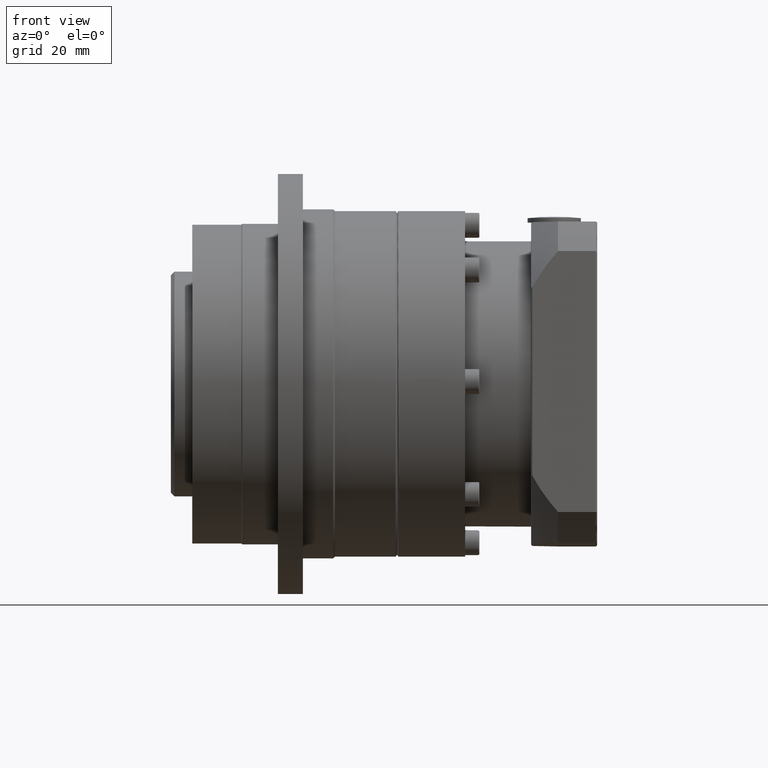
[diagram: clean part render]
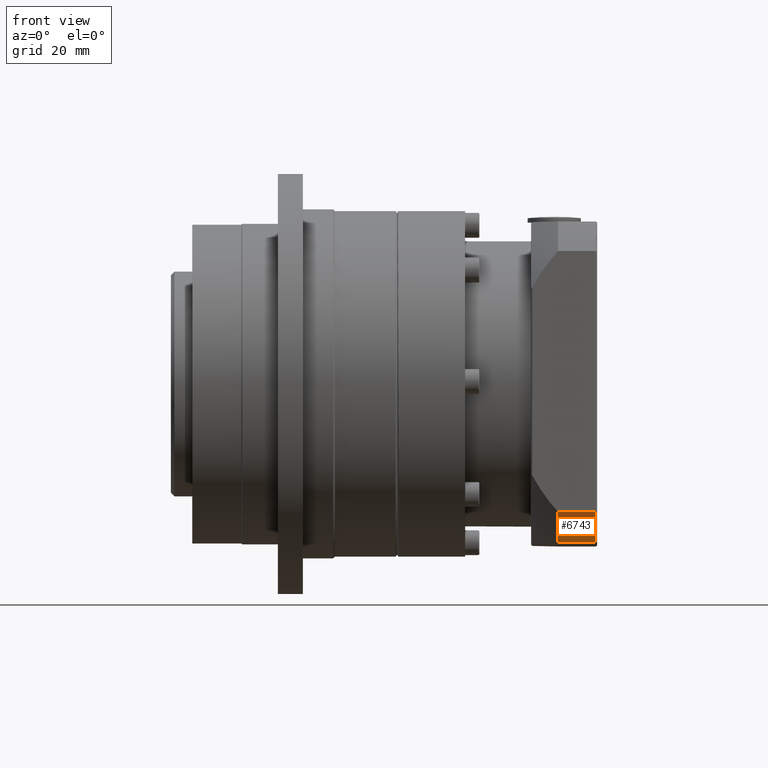
[diagram: same view with one face highlighted and labeled with its STEP entity id]
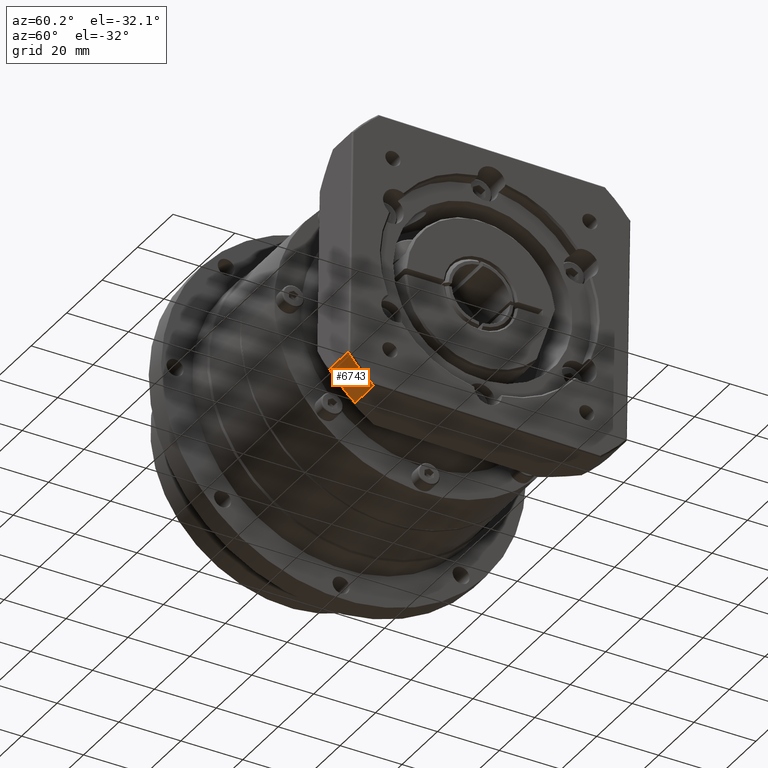
[diagram: same view with one face highlighted and labeled with its STEP entity id]
A machine part, front view. The second image highlights one B-rep face of the part: STEP entity #6743.
A second angle (auxiliary view) of the same face is appended — the face is thin or edge-on in the first view.
In plain terms, the highlighted cylindrical surface (partial cylindrical patch) has radius 58 mm, axis along (-1, 0, 0).
Its self-contained STEP definition (entity closure, byte-faithful):
#492=LINE('',#11149,#779);
#493=LINE('',#11152,#780);
#779=VECTOR('',#8816,10.4511904588865);
#780=VECTOR('',#8819,10.4511904588865);
#1605=FACE_OUTER_BOUND('',#2172,.T.);
#2172=EDGE_LOOP('',(#5227,#5228,#5229,#5230));
#2772=CIRCLE('',#7398,58.);
#2782=CIRCLE('',#7413,58.);
#3294=VERTEX_POINT('',#11021);
#3295=VERTEX_POINT('',#11023);
#3307=VERTEX_POINT('',#11148);
#3308=VERTEX_POINT('',#11150);
#4014=EDGE_CURVE('',#3295,#3294,#2772,.T.);
#4032=EDGE_CURVE('',#3307,#3294,#492,.T.);
#4033=EDGE_CURVE('',#3308,#3307,#2782,.T.);
#4034=EDGE_CURVE('',#3295,#3308,#493,.T.);
#5227=ORIENTED_EDGE('',*,*,#4014,.T.);
#5228=ORIENTED_EDGE('',*,*,#4032,.F.);
#5229=ORIENTED_EDGE('',*,*,#4033,.F.);
#5230=ORIENTED_EDGE('',*,*,#4034,.F.);
#6074=CYLINDRICAL_SURFACE('',#7412,58.);
#6743=ADVANCED_FACE('',(#1605),#6074,.T.);
#7398=AXIS2_PLACEMENT_3D('',#11024,#8783,#8784);
#7412=AXIS2_PLACEMENT_3D('',#11147,#8814,#8815);
#7413=AXIS2_PLACEMENT_3D('',#11151,#8817,#8818);
#8783=DIRECTION('center_axis',(1.,-3.94956931320372E-15,-3.45385805763014E-15));
#8784=DIRECTION('ref_axis',(-3.51393260220579E-15,-0.0153129377686107,-0.999882750094677));
#8814=DIRECTION('center_axis',(-1.,3.94956931320372E-15,3.45385805763014E-15));
#8815=DIRECTION('ref_axis',(-3.51393260220579E-15,-0.0153129377686107,-0.999882750094677));
#8816=DIRECTION('',(-1.,3.94956931320372E-15,3.45385805763014E-15));
#8817=DIRECTION('center_axis',(1.,-3.94956931320372E-15,-3.45385805763014E-15));
#8818=DIRECTION('ref_axis',(-5.23976739612715E-15,-0.717851755119473,-0.696195990847328));
#8819=DIRECTION('',(1.,-3.94956931320372E-15,-3.45385805763014E-15));
#11021=CARTESIAN_POINT('',(74.8290479395147,-132.349189234964,-55.8679732722115));
#11023=CARTESIAN_POINT('',(74.8290479395147,-140.627108673948,-47.3325621579077));
#11024=CARTESIAN_POINT('Origin',(74.8290479395149,-95.0720485577598,-11.4335858798785));
#11147=CARTESIAN_POINT('Origin',(85.7802383984015,-95.0720485577599,-11.4335858798785));
#11148=CARTESIAN_POINT('',(85.2802383984012,-132.349189234964,-55.8679732722116));
#11149=CARTESIAN_POINT('',(85.7802383984012,-132.349189234964,-55.8679732722116));
#11150=CARTESIAN_POINT('',(85.2802383984012,-140.627108673948,-47.3325621579078));
#11151=CARTESIAN_POINT('Origin',(85.2802383984015,-95.0720485577599,-11.4335858798785));
#11152=CARTESIAN_POINT('',(85.7802383984012,-140.627108673948,-47.3325621579078));